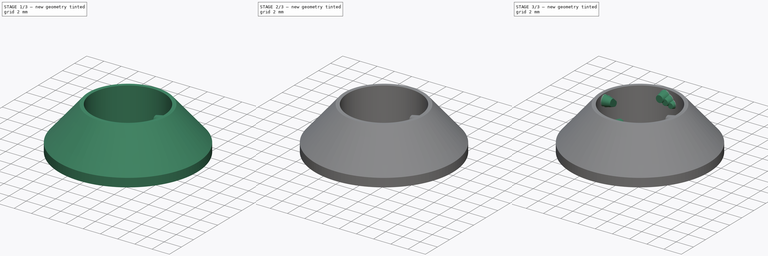
[diagram: build sequence overview — one tinted view per stage of 3, left to right]
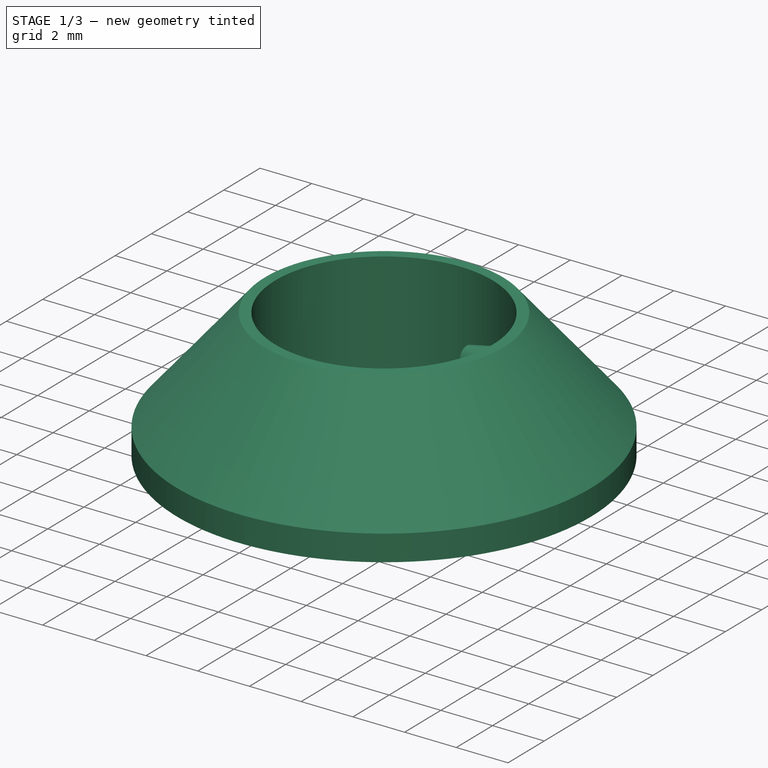
[diagram: stage 1 of 3 — iso view after this stage's code; geometry added in this stage tinted green]
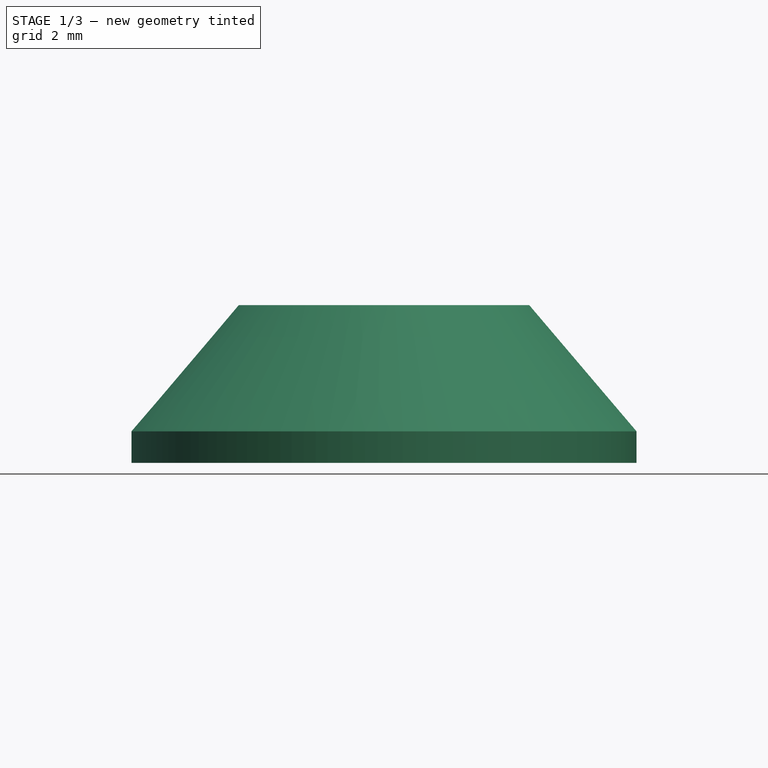
[diagram: stage 1 of 3 — front view after this stage's code; geometry added in this stage tinted green]
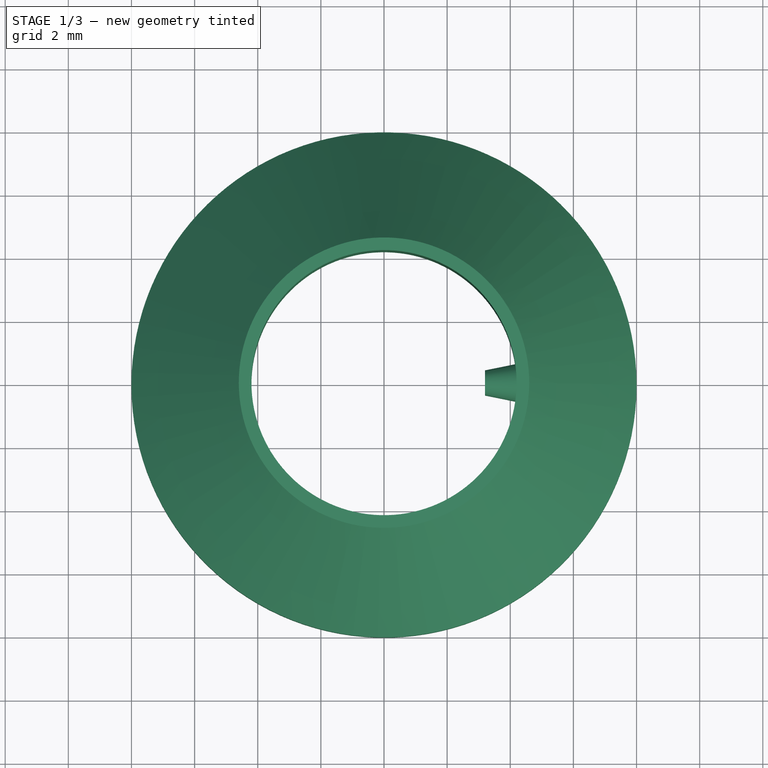
[diagram: stage 1 of 3 — top view after this stage's code; geometry added in this stage tinted green]
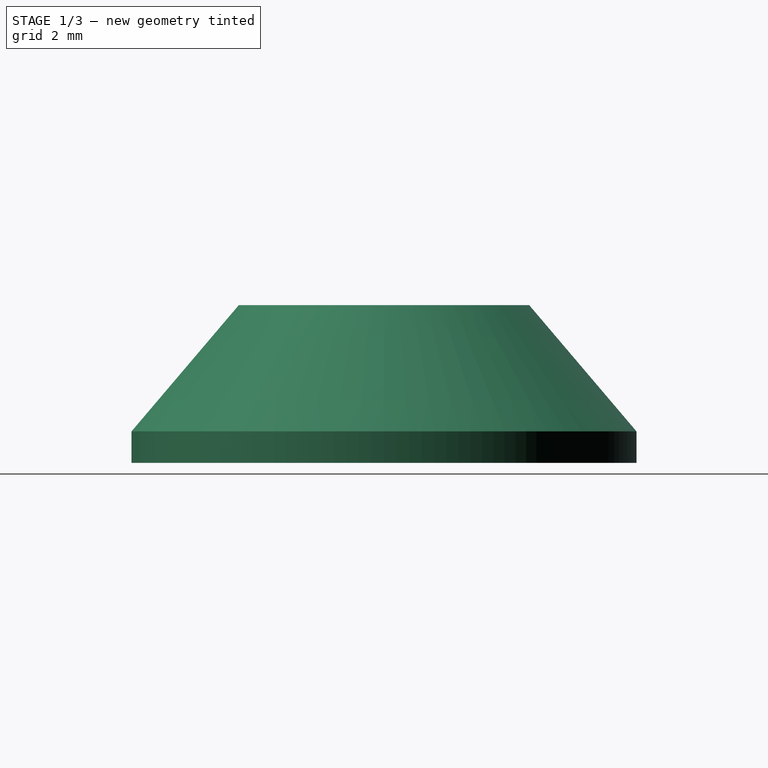
[diagram: stage 1 of 3 — right view after this stage's code; geometry added in this stage tinted green]
FCSTD DOCUMENT  (FreeCAD 0.22R38231 (Git))
Label: _Z-Screw-Cover
License: Creative Commons Attribution 4.0
LicenseURL: https://creativecommons.org/licenses/by/4.0/
objects: Sketcher::SketchObject×4, PartDesign::Pad×3, PartDesign::Revolution×1, PartDesign::Plane×1, PartDesign::PolarPattern×1, PartDesign::Body×1
note: 20 computed .brp shape members not serialized (recipe doc carries the construction recipe); baked Part::Feature solids carry a one-line shape summary decoded from their .brp

FEATURE [Sketcher::SketchObject] Sketch
  AttachmentSupport = -> [XZ_Plane]
  FullyConstrained = true
  MapMode = 5
  Placement = pos=(0,0,0) rot=(1,0,0;1.5708rad)
  sketch-geometry (6):
    g0: LineSegment StartX=4.2 StartY=5 StartZ=0 EndX=4.2 EndY=1 EndZ=0
    g1: LineSegment StartX=4.2 StartY=1 StartZ=0 EndX=4.5 EndY=0 EndZ=0
    g2: LineSegment StartX=4.5 StartY=0 StartZ=0 EndX=8 EndY=0 EndZ=0
    g3: LineSegment StartX=8 StartY=0 StartZ=0 EndX=8 EndY=1 EndZ=0
    g4: LineSegment StartX=8 StartY=1 StartZ=0 EndX=4.6 EndY=5 EndZ=0
    g5: LineSegment StartX=4.6 StartY=5 StartZ=0 EndX=4.2 EndY=5 EndZ=0
  constraints (18):
    c: Vertical(g0)
    c: Coincident(g0,g1)
    c: PointOnObject(g1,g-1)
    c: Coincident(g1,g2)
    c: PointOnObject(g2,g-1)
    c: Coincident(g2,g3)
    c: Vertical(g3)
    c: Coincident(g3,g4)
    c: Coincident(g4,g5)
    c: Coincident(g5,g0)
    c: Horizontal(g5)
    c: DistanceY(g-1,g0) = 5
    c: DistanceX(g-1,g2) = 8
    c: DistanceY(g3,g3) = 1
    c: DistanceX(g-1,g4) = 4.6
    c: DistanceX(g-1,g0) = 4.2
    c: Horizontal(g3,g0)
    c: DistanceX(g0,g1) = 0.3
FEATURE [PartDesign::Revolution] Revolution
  Angle = 360
  Angle2 = 60
  Axis = (0,2e-16,1)
  Base = (0,0,0)
  Placement = pos=(0,0,0) rot=(1,0,0;1.5708rad)
  Profile = -> Sketch
  ReferenceAxis = -> Sketch [V_Axis]
  Refine = true
  Reversed = true
  Suppressed = false
  Type = 0
FEATURE [PartDesign::Plane] DatumPlane
  AttachmentOffset = pos=(0,0,4.2) rot=(0,0,1;0rad)
  AttachmentSupport = -> [YZ_Plane]
  Length = 60
  MapMode = 5
  Placement = pos=(4.2,0,0) rot=(0.57735,0.57735,0.57735;2.0944rad)
  ResizeMode = 0
  Width = 60
FEATURE [Sketcher::SketchObject] Sketch001
  AttachmentOffset = pos=(0,0,-1) rot=(0,0,1;0rad)
  AttachmentSupport = -> [DatumPlane]
  FullyConstrained = true
  MapMode = 5
  Placement = pos=(3.2,0,0) rot=(0.57735,0.57735,0.57735;2.0944rad)
  sketch-geometry (3):
    g0: Circle CenterX=0 CenterY=4.3 CenterZ=0 NormalX=0 NormalY=0 NormalZ=1 AngleXU=0 Radius=0.4
    g1: Circle CenterX=-0.5 CenterY=4 CenterZ=0 NormalX=0 NormalY=0 NormalZ=1 AngleXU=0 Radius=0.3
    g2: Circle CenterX=-1 CenterY=3.7 CenterZ=0 NormalX=0 NormalY=0 NormalZ=1 AngleXU=0 Radius=0.3
  constraints (9):
    c: PointOnObject(g0,g-2)
    c: DistanceY(g-1,g0) = 4.3
    c: DistanceX(g1,g0) = 0.5
    c: DistanceY(g1,g0) = 0.3
    c: DistanceX(g2,g1) = 0.5
    c: DistanceY(g2,g1) = 0.3
    c: Diameter(g0) = 0.8
    c: Diameter(g1) = 0.6
    c: Diameter(g2) = 0.6
FEATURE [Sketcher::SketchObject] Sketch002
  AttachmentOffset = pos=(0,0,-0.8) rot=(0,0,1;0rad)
  AttachmentSupport = -> [DatumPlane]
  FullyConstrained = true
  MapMode = 5
  Placement = pos=(3.4,0,0) rot=(0.57735,0.57735,0.57735;2.0944rad)
  sketch-geometry (4):
    g0: Circle CenterX=0 CenterY=4.3 CenterZ=0 NormalX=0 NormalY=0 NormalZ=1 AngleXU=0 Radius=0.4
    g1: ArcOfCircle CenterX=-0.5 CenterY=4 CenterZ=0 NormalX=0 NormalY=0 NormalZ=1 AngleXU=0 Radius=0.35 StartAngle=1.27648 EndAngle=6.08754
    g2: Circle CenterX=-1 CenterY=3.7 CenterZ=0 NormalX=0 NormalY=0 NormalZ=1 AngleXU=0 Radius=0.3
    g3: LineSegment StartX=-0.39847 StartY=4.33495 StartZ=0 EndX=-0.156677 EndY=3.93196 EndZ=0
  constraints (15):
    c: PointOnObject(g0,g-2)
    c: DistanceY(g-1,g0) = 4.3
    c: DistanceX(g1,g0) = 0.5
    c: DistanceY(g1,g0) = 0.3
    c: DistanceX(g2,g1) = 0.5
    c: DistanceY(g2,g1) = 0.3
    c: Diameter(g0) = 0.8
    c: Diameter(g1) = 0.7
    c: Diameter(g2) = 0.6
    c: PointOnObject(g3,g1)
    c: PointOnObject(g3,g1)
    c: PointOnObject(g3,g0)
    c: PointOnObject(g3,g0)
    c: PointOnObject(g1,g0)
    c: PointOnObject(g1,g0)
FEATURE [Sketcher::SketchObject] Sketch003
  AttachmentOffset = pos=(0,0,-0.6) rot=(0,0,1;0rad)
  AttachmentSupport = -> [DatumPlane]
  FullyConstrained = true
  MapMode = 5
  Placement = pos=(3.6,0,0) rot=(0.57735,0.57735,0.57735;2.0944rad)
  sketch-geometry (3):
    g0: Circle CenterX=0 CenterY=4.3 CenterZ=0 NormalX=0 NormalY=0 NormalZ=1 AngleXU=0 Radius=0.4
    g1: Circle CenterX=-0.5 CenterY=4 CenterZ=0 NormalX=0 NormalY=0 NormalZ=1 AngleXU=0 Radius=0.3
    g2: Circle CenterX=-1 CenterY=3.7 CenterZ=0 NormalX=0 NormalY=0 NormalZ=1 AngleXU=0 Radius=0.3
  constraints (9):
    c: PointOnObject(g0,g-2)
    c: DistanceY(g-1,g0) = 4.3
    c: DistanceX(g1,g0) = 0.5
    c: DistanceY(g1,g0) = 0.3
    c: DistanceX(g2,g1) = 0.5
    c: DistanceY(g2,g1) = 0.3
    c: Diameter(g0) = 0.8
    c: Diameter(g1) = 0.6
    c: Diameter(g2) = 0.6
FEATURE [PartDesign::Pad] Pad
  BaseFeature = -> Revolution
  Direction = (1,0,0)
  Length = 1
  Length2 = 10
  Placement = pos=(0,0,0) rot=(1,0,0;1.5708rad)
  Profile = -> Sketch001
  ReferenceAxis = -> Sketch001 [N_Axis]
  Refine = true
  Suppressed = false
  TaperAngle = 11.5
  Type = 0
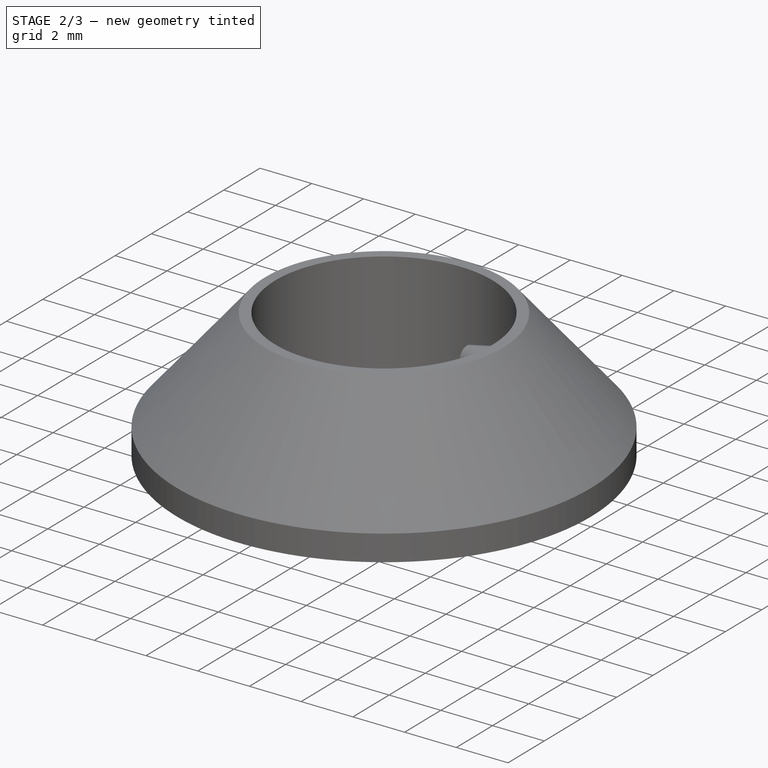
[diagram: stage 2 of 3 — iso view after this stage's code; geometry added in this stage tinted green]
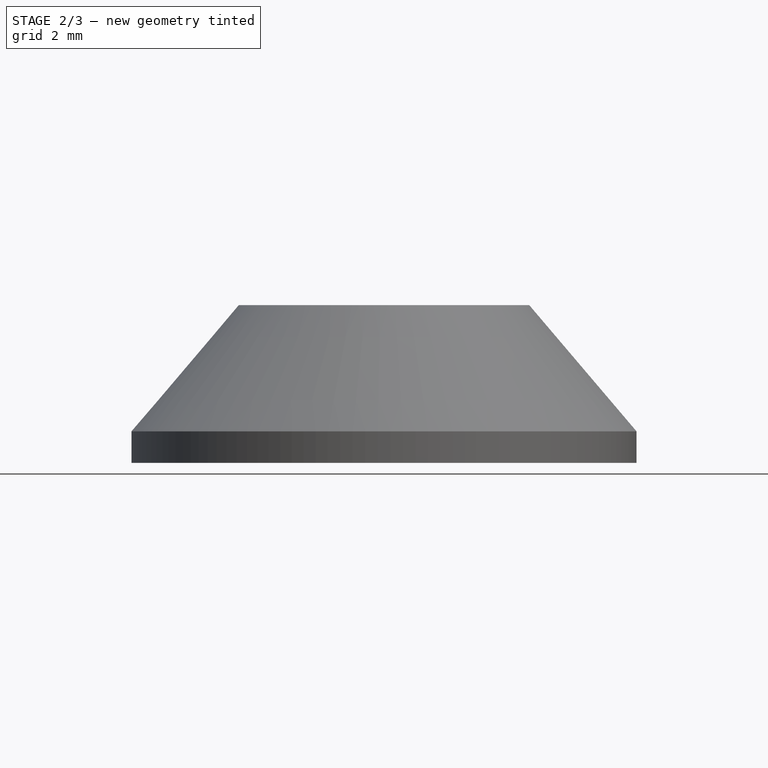
[diagram: stage 2 of 3 — front view after this stage's code; geometry added in this stage tinted green]
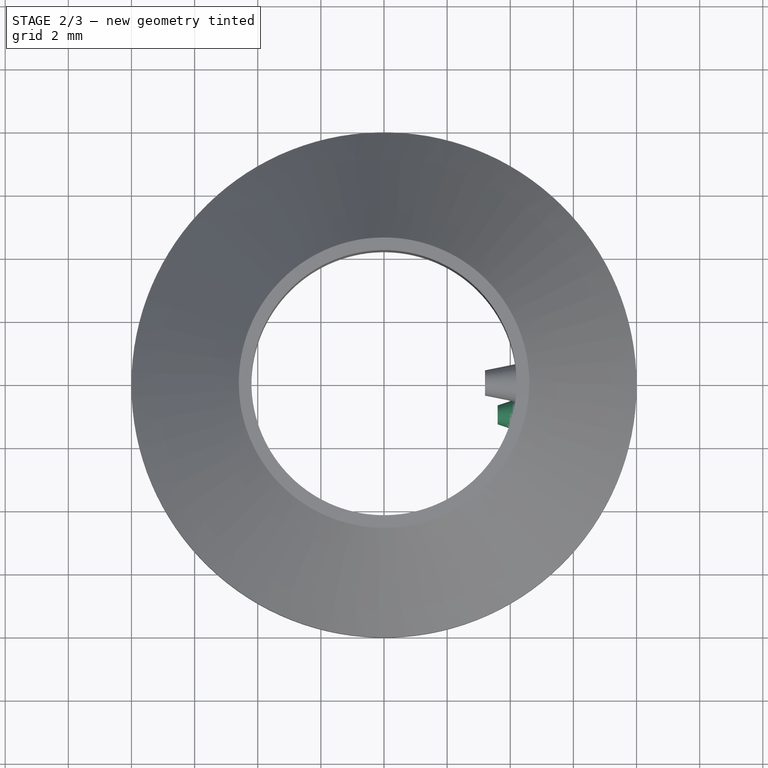
[diagram: stage 2 of 3 — top view after this stage's code; geometry added in this stage tinted green]
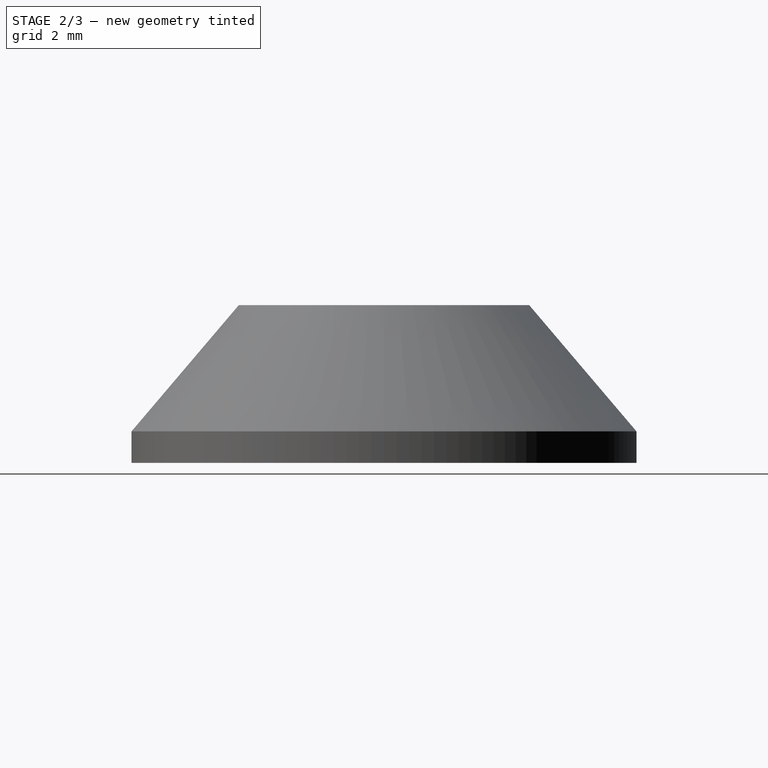
[diagram: stage 2 of 3 — right view after this stage's code; geometry added in this stage tinted green]
FEATURE [PartDesign::Pad] Pad002
  BaseFeature = -> Pad
  Direction = (1,0,0)
  Length = 1
  Length2 = 10
  Placement = pos=(0,0,0) rot=(1,0,0;1.5708rad)
  Profile = -> Sketch003
  ReferenceAxis = -> Sketch003 [N_Axis]
  Refine = true
  Suppressed = false
  TaperAngle = 18.5
  Type = 0
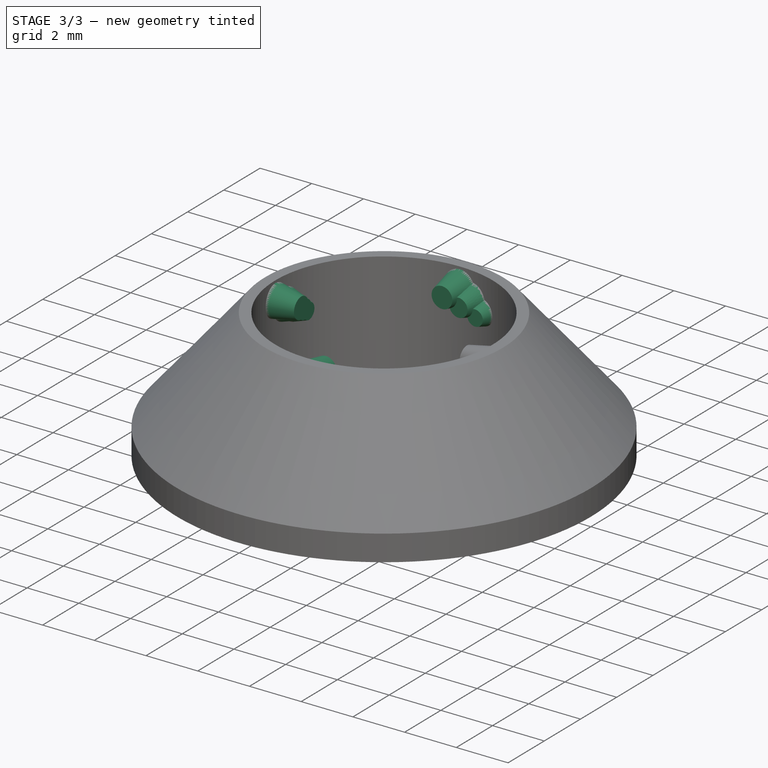
[diagram: stage 3 of 3 — iso view after this stage's code; geometry added in this stage tinted green]
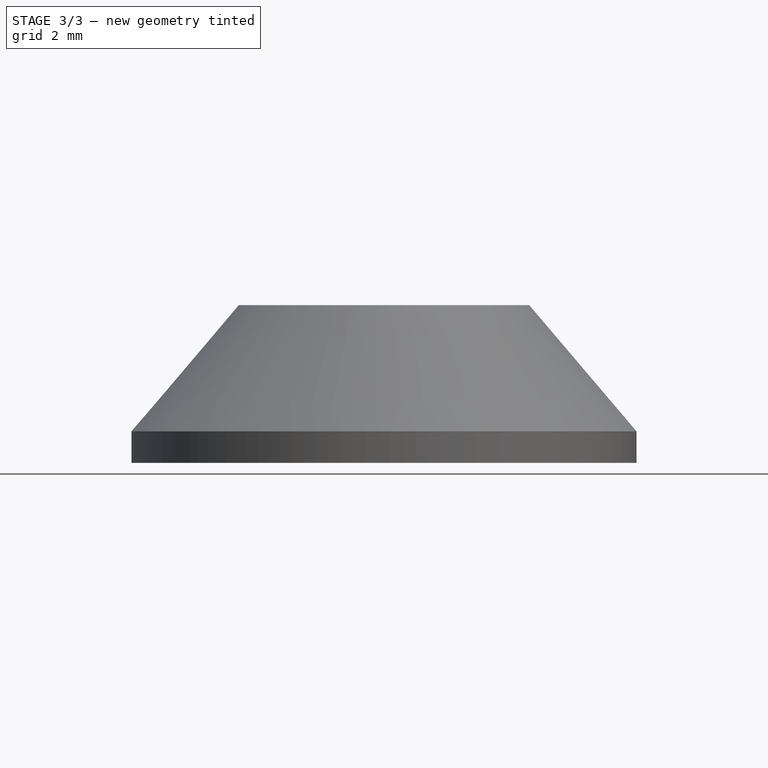
[diagram: stage 3 of 3 — front view after this stage's code; geometry added in this stage tinted green]
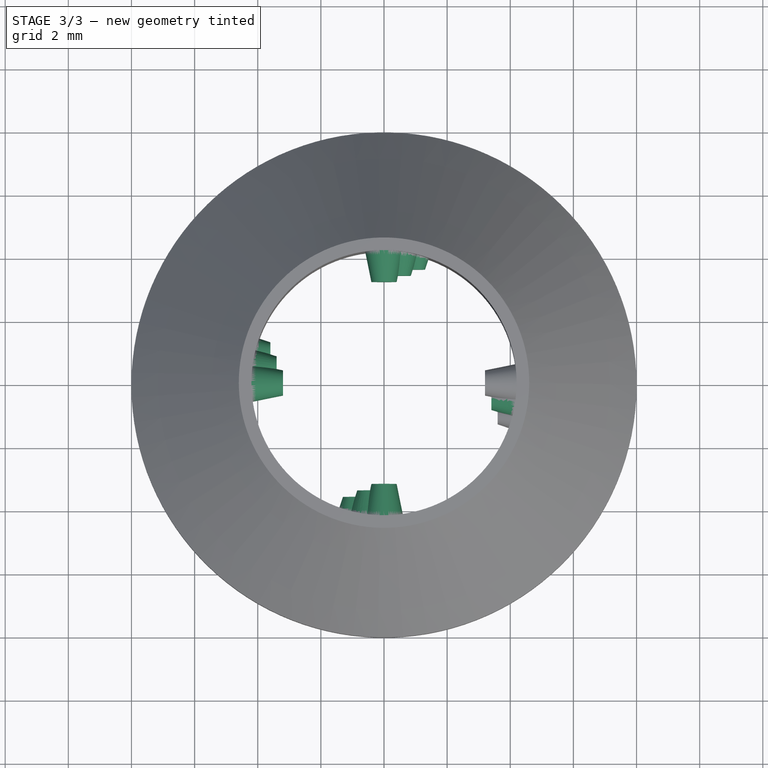
[diagram: stage 3 of 3 — top view after this stage's code; geometry added in this stage tinted green]
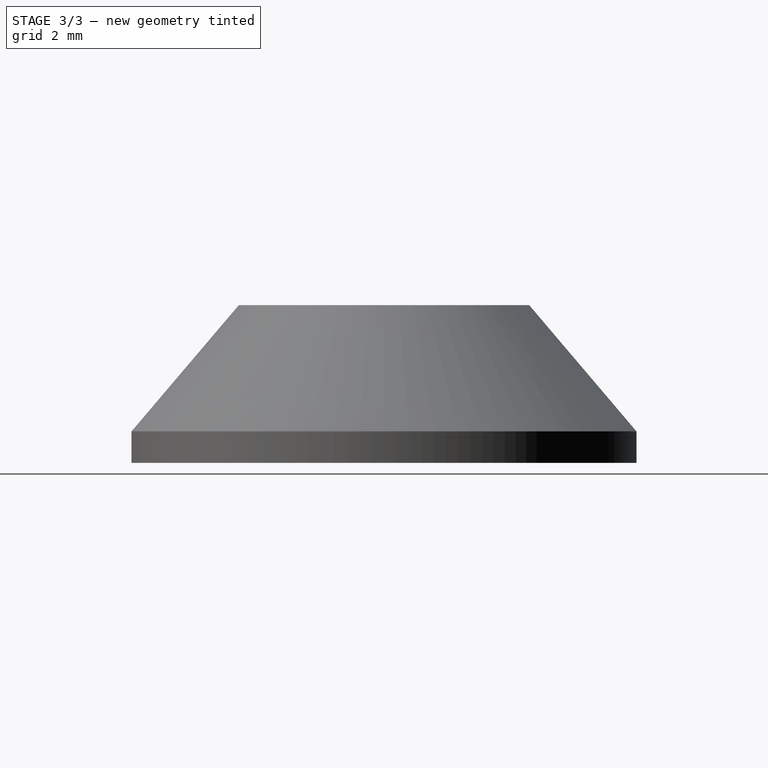
[diagram: stage 3 of 3 — right view after this stage's code; geometry added in this stage tinted green]
FEATURE [PartDesign::Pad] Pad003
  BaseFeature = -> Pad002
  Direction = (1,0,0)
  Length = 1
  Length2 = 10
  Placement = pos=(0,0,0) rot=(1,0,0;1.5708rad)
  Profile = -> Sketch002
  ReferenceAxis = -> Sketch002 [N_Axis]
  Refine = true
  Suppressed = false
  TaperAngle = 17.3
  Type = 0
FEATURE [PartDesign::PolarPattern] PolarPattern
  Angle = 360
  Axis = -> Z_Axis
  BaseFeature = -> Pad003
  Mode = 0
  Occurrences = 4
  Offset = 120
  Originals = -> [Pad,Pad002,Pad003]
  Placement = pos=(0,0,0) rot=(1,0,0;1.5708rad)
  Refine = true
  Suppressed = false
  TransformMode = 0
FEATURE [PartDesign::Body] Body  label="Z-Screw-Cover"
  AllowCompound = false
  Group = -> [Sketch,Revolution,DatumPlane,Sketch001,Sketch002,Sketch003,Pad,Pad002,Pad003,PolarPattern]
  Origin = -> Origin
  Tip = -> PolarPattern
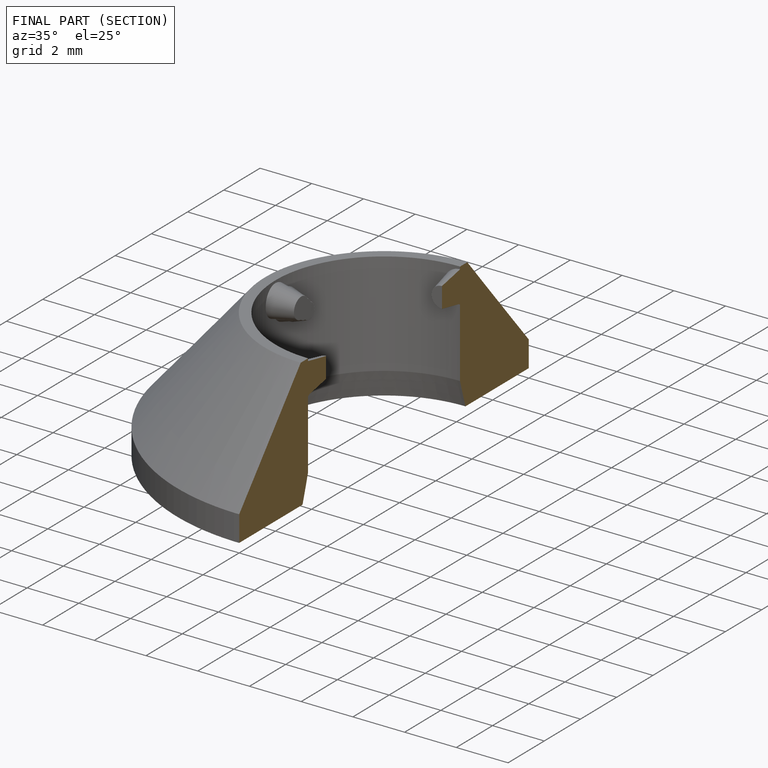
[diagram: finished part — half-section view (interior)]
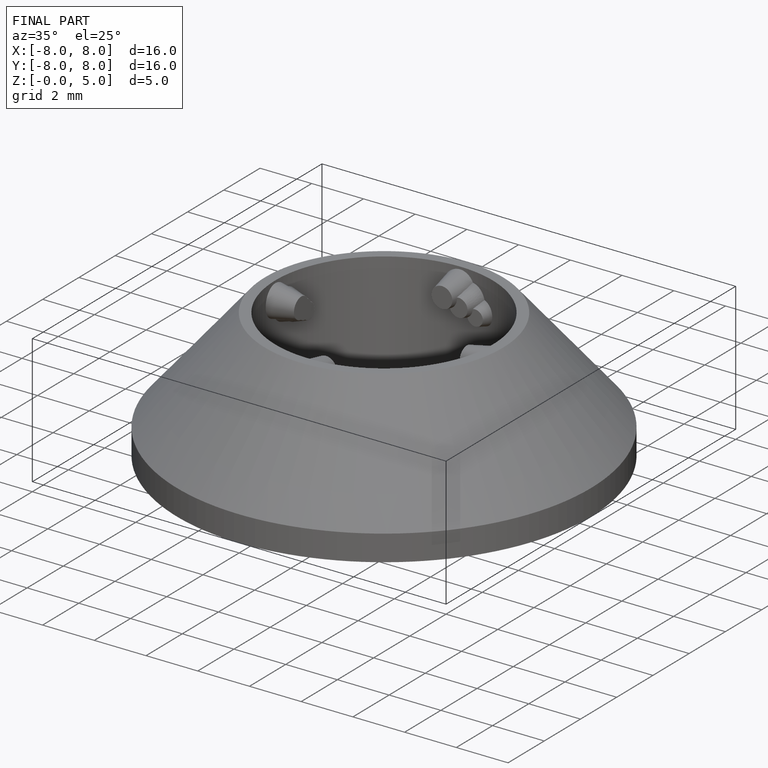
[diagram: finished part — iso view with bounding-box wireframe]
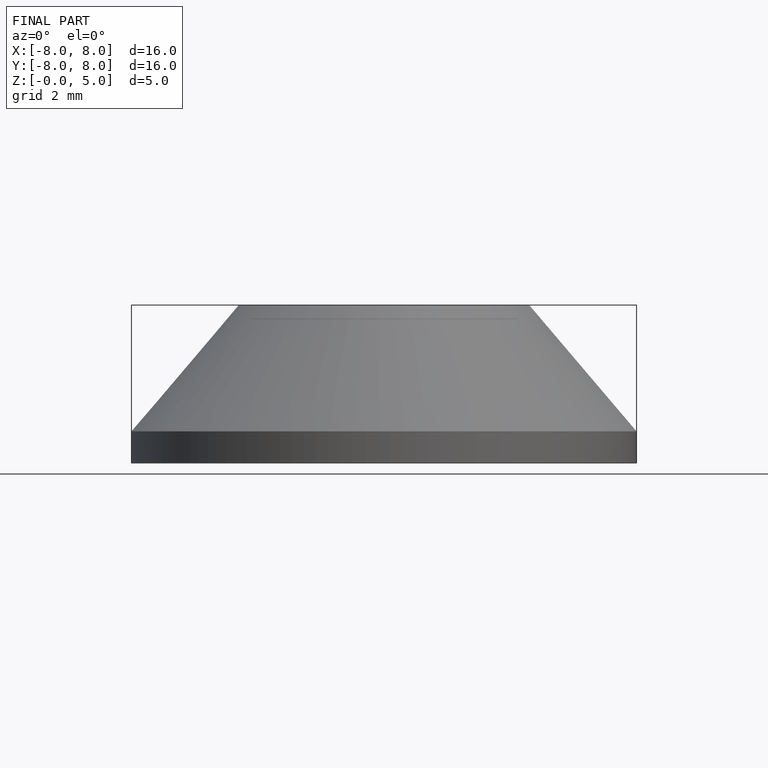
[diagram: finished part — front view with bounding-box wireframe]
